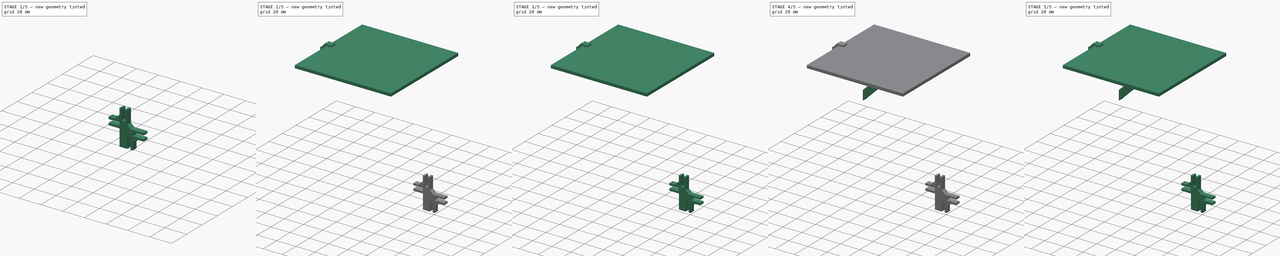
[diagram: build sequence overview — one tinted view per stage of 5, left to right]
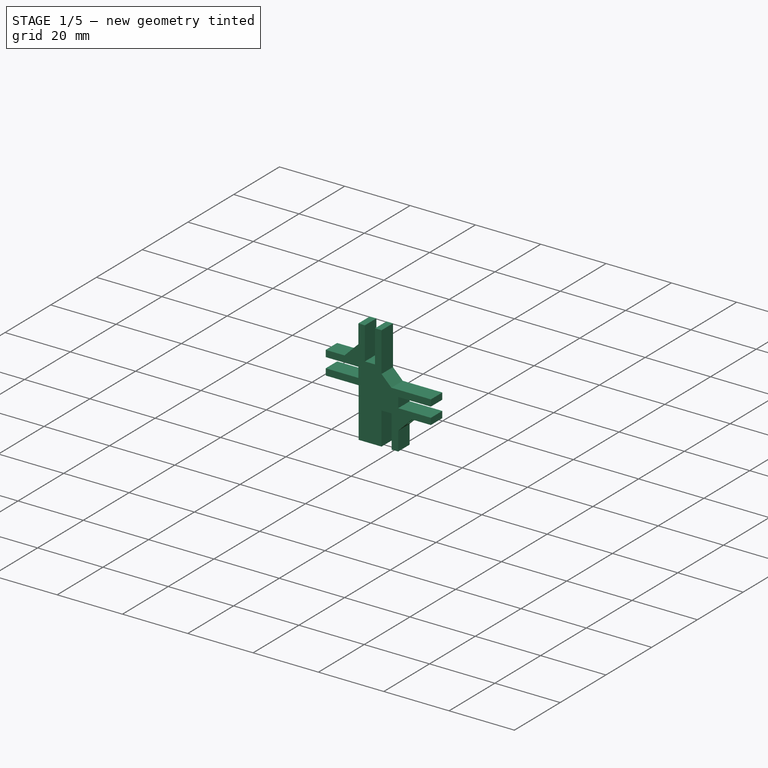
[diagram: stage 1 of 5 — iso view after this stage's code; geometry added in this stage tinted green]
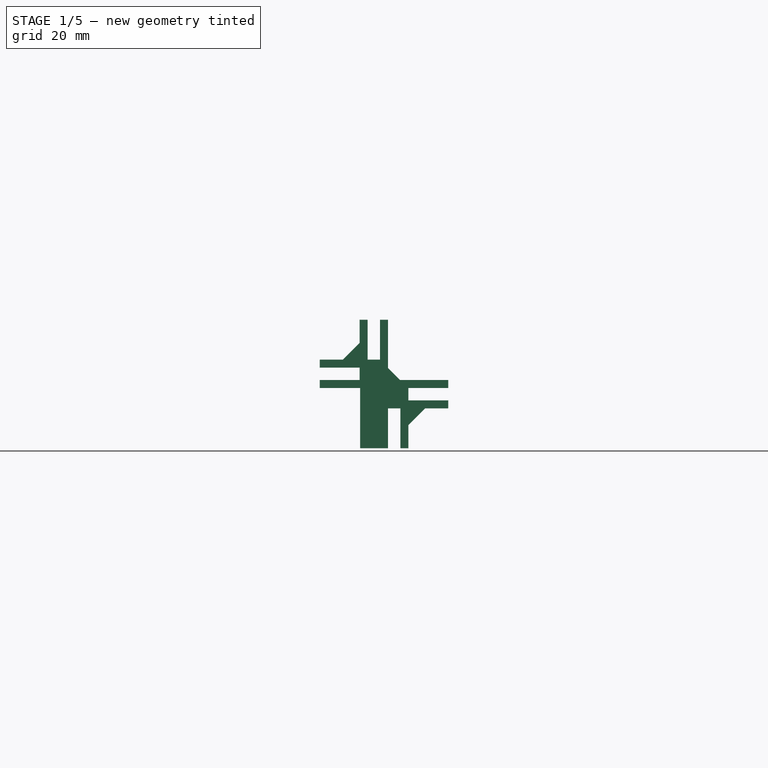
[diagram: stage 1 of 5 — front view after this stage's code; geometry added in this stage tinted green]
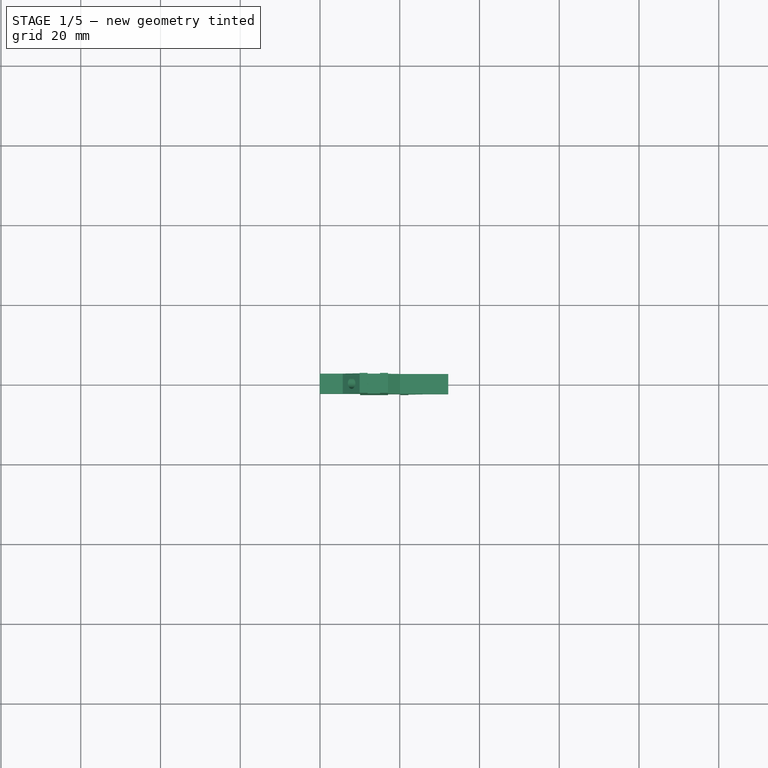
[diagram: stage 1 of 5 — top view after this stage's code; geometry added in this stage tinted green]
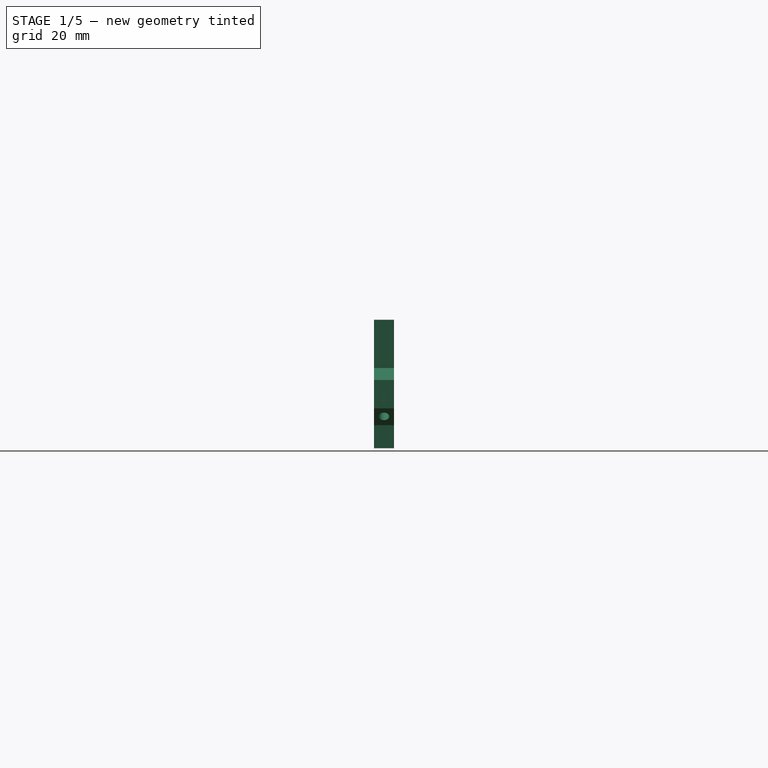
[diagram: stage 1 of 5 — right view after this stage's code; geometry added in this stage tinted green]
FCSTD DOCUMENT  (FreeCAD 0.19R24291 (Git))
Label: LEDcube
License: All rights reserved
LicenseURL: http://en.wikipedia.org/wiki/All_rights_reserved
objects: PartDesign::Body×11, Sketcher::SketchObject×10, PartDesign::FeatureBase×7, PartDesign::Hole×6, PartDesign::Pad×4, Part::Feature×1
note: 49 computed .brp shape members not serialized (recipe doc carries the construction recipe); baked Part::Feature solids carry a one-line shape summary decoded from their .brp

FEATURE [PartDesign::Body] Body009  label="Plexi1"
  BaseFeature = -> Body004
  Group = -> [Clone006]
  Origin = -> Origin009
  Placement = pos=(0,0,0) rot=(0,1,0;1.5708rad)
  Tip = -> Clone006
FEATURE [Sketcher::SketchObject] Sketch008
  AttachmentOffset = pos=(0,0,-2.5) rot=(0,0,1;0rad)
  FullyConstrained = true
  MapMode = 5
  Placement = pos=(0,2.5,6e-16) rot=(1,0,0;1.5708rad)
  Support = -> [XZ_Plane010]
  sketch-geometry (43):
    g0: LineSegment StartX=49.95 StartY=-40.139 StartZ=0 EndX=51.95 EndY=-40.139 EndZ=0
    g1: LineSegment StartX=51.95 StartY=-40.139 StartZ=0 EndX=51.95 EndY=-50.139 EndZ=0
    g2: LineSegment StartX=51.95 StartY=-50.139 StartZ=0 EndX=55.05 EndY=-50.139 EndZ=0
    g3: LineSegment StartX=55.05 StartY=-50.139 StartZ=0 EndX=55.05 EndY=-40.139 EndZ=0
    g4: LineSegment StartX=55.05 StartY=-40.139 StartZ=0 EndX=57.05 EndY=-40.139 EndZ=0
    g5: LineSegment StartX=72.15 StartY=-55.239 StartZ=0 EndX=72.15 EndY=-57.239 EndZ=0
    g6: LineSegment StartX=72.15 StartY=-57.239 StartZ=0 EndX=62.15 EndY=-57.239 EndZ=0
    g7: LineSegment StartX=62.15 StartY=-57.239 StartZ=0 EndX=62.15 EndY=-60.339 EndZ=0
    g8: LineSegment StartX=62.15 StartY=-60.339 StartZ=0 EndX=72.15 EndY=-60.339 EndZ=0
    g9: LineSegment StartX=72.15 StartY=-60.339 StartZ=0 EndX=72.15 EndY=-62.339 EndZ=0
    g10: LineSegment StartX=72.15 StartY=-62.339 StartZ=0 EndX=66.3926 EndY=-62.339 EndZ=0
    g11: LineSegment StartX=66.3926 StartY=-62.339 StartZ=0 EndX=62.15 EndY=-66.5817 EndZ=0
    g12: LineSegment StartX=62.15 StartY=-66.5817 StartZ=0 EndX=62.15 EndY=-72.339 EndZ=0
    g13: LineSegment StartX=62.15 StartY=-72.339 StartZ=0 EndX=60.15 EndY=-72.339 EndZ=0
    g14: LineSegment StartX=60.15 StartY=-72.339 StartZ=0 EndX=60.15 EndY=-62.339 EndZ=0
    g15: LineSegment StartX=60.15 StartY=-62.339 StartZ=0 EndX=57.05 EndY=-62.339 EndZ=0
    g16: LineSegment StartX=57.05 StartY=-62.339 StartZ=0 EndX=57.05 EndY=-72.339 EndZ=0
    g17: LineSegment StartX=57.05 StartY=-72.339 StartZ=0 EndX=50.05 EndY=-72.339 EndZ=0
    g18: LineSegment StartX=50.05 StartY=-72.339 StartZ=0 EndX=50.05 EndY=-57.239 EndZ=0
    g19: LineSegment StartX=50.05 StartY=-57.239 StartZ=0 EndX=39.95 EndY=-57.239 EndZ=0
    g20: LineSegment StartX=39.95 StartY=-57.239 StartZ=0 EndX=39.95 EndY=-55.239 EndZ=0
    g21: LineSegment StartX=39.95 StartY=-55.239 StartZ=0 EndX=49.95 EndY=-55.239 EndZ=0
    g22: LineSegment StartX=49.95 StartY=-55.239 StartZ=0 EndX=49.95 EndY=-52.139 EndZ=0
    g23: LineSegment StartX=49.95 StartY=-52.139 StartZ=0 EndX=39.95 EndY=-52.139 EndZ=0
    g24: LineSegment StartX=39.95 StartY=-52.139 StartZ=0 EndX=39.95 EndY=-50.139 EndZ=0
    g25: LineSegment StartX=39.95 StartY=-50.139 StartZ=0 EndX=45.7074 EndY=-50.139 EndZ=0
    g26: LineSegment StartX=45.7074 StartY=-50.139 StartZ=0 EndX=49.95 EndY=-45.8964 EndZ=0
    g27: LineSegment StartX=49.95 StartY=-45.8964 StartZ=0 EndX=49.95 EndY=-40.139 EndZ=0
    g28: LineSegment StartX=51.95 StartY=-40.139 StartZ=0 EndX=55.05 EndY=-40.139 EndZ=0
    g29: LineSegment StartX=57.05 StartY=-72.339 StartZ=0 EndX=60.15 EndY=-72.339 EndZ=0
    g30: LineSegment StartX=39.95 StartY=-52.139 StartZ=0 EndX=39.95 EndY=-55.239 EndZ=0
    g31: LineSegment StartX=72.15 StartY=-57.239 StartZ=0 EndX=72.15 EndY=-60.339 EndZ=0
    g32: LineSegment StartX=45.7074 StartY=-50.139 StartZ=0 EndX=49.95 EndY=-50.139 EndZ=0
    g33: LineSegment StartX=49.95 StartY=-50.139 StartZ=0 EndX=49.95 EndY=-45.8964 EndZ=0
    g34: LineSegment StartX=66.3926 StartY=-62.339 StartZ=0 EndX=62.15 EndY=-62.339 EndZ=0
    g35: LineSegment StartX=62.15 StartY=-62.339 StartZ=0 EndX=62.15 EndY=-66.5817 EndZ=0
    g36: LineSegment StartX=57.05 StartY=-55.239 StartZ=0 EndX=57.05 EndY=-62.339 EndZ=0
    g37: LineSegment StartX=50.05 StartY=-57.239 StartZ=0 EndX=62.15 EndY=-57.239 EndZ=0
    g38: LineSegment StartX=72.15 StartY=-55.239 StartZ=0 EndX=60.05 EndY=-55.239 EndZ=0
    g39: LineSegment StartX=60.05 StartY=-55.239 StartZ=0 EndX=57.05 EndY=-52.239 EndZ=0
    g40: LineSegment StartX=57.05 StartY=-52.239 StartZ=0 EndX=57.05 EndY=-40.139 EndZ=0
    g41: LineSegment StartX=57.05 StartY=-52.239 StartZ=0 EndX=57.05 EndY=-55.239 EndZ=0
    g42: LineSegment StartX=57.05 StartY=-55.239 StartZ=0 EndX=60.05 EndY=-55.239 EndZ=0
  constraints (120):
    c: Horizontal(g0)
    c: Coincident(g0,g1)
    c: Vertical(g1)
    c: Coincident(g1,g2)
    c: Horizontal(g2)
    c: Coincident(g2,g3)
    c: Vertical(g3)
    c: Coincident(g3,g4)
    c: Horizontal(g4)
    c: Vertical(g5)
    c: Coincident(g5,g6)
    c: Horizontal(g6)
    c: Coincident(g6,g7)
    c: Vertical(g7)
    c: Coincident(g7,g8)
    c: Horizontal(g8)
    c: Coincident(g8,g9)
    c: Vertical(g9)
    c: Coincident(g9,g10)
    c: Horizontal(g10)
    c: Coincident(g10,g11)
    c: Coincident(g11,g12)
    c: Vertical(g12)
    c: Coincident(g12,g13)
    c: Horizontal(g13)
    c: Coincident(g13,g14)
    c: Vertical(g14)
    c: Coincident(g14,g15)
    c: Horizontal(g15)
    c: Coincident(g15,g16)
    c: Vertical(g16)
    c: Coincident(g16,g17)
    c: Horizontal(g17)
    c: Coincident(g17,g18)
    c: Vertical(g18)
    c: Coincident(g18,g19)
    c: Horizontal(g19)
    c: Coincident(g19,g20)
    c: Vertical(g20)
    c: Coincident(g20,g21)
    c: Horizontal(g21)
    c: Coincident(g21,g22)
    c: Vertical(g22)
    c: Coincident(g22,g23)
    c: Horizontal(g23)
    c: Coincident(g23,g24)
    c: Vertical(g24)
    c: Coincident(g24,g25)
    c: Horizontal(g25)
    c: Coincident(g25,g26)
    c: Coincident(g26,g27)
    c: Coincident(g27,g0)
    c: Vertical(g27)
    c: Equal(g2,g22)
    c: Equal(g22,g15)
    c: Equal(g15,g7)
    c: DistanceX(g2,g2) = 3.1
    c: DistanceX(g1) = 51.95
    c: DistanceY(g1) = -50.139
    c: Equal(g0,g4)
    c: Equal(g4,g24)
    c: Equal(g24,g20)
    c: Equal(g20,g5)
    c: Equal(g5,g9)
    c: Equal(g26,g11)
    c: Distance(g26) = 6
    c: Equal(g27,g25)
    c: Equal(g25,g10)
    c: Equal(g10,g12)
    c: Coincident(g28,g0)
    c: Coincident(g28,g3)
    c: Horizontal(g28)
    c: Coincident(g29,g16)
    c: Coincident(g29,g13)
    c: Horizontal(g29)
    c: Coincident(g30,g23)
    c: Coincident(g30,g20)
    c: Vertical(g30)
    c: Coincident(g31,g5)
    c: Coincident(g31,g8)
    c: Vertical(g31)
    c: Equal(g23,g16)
    c: Equal(g16,g8)
    c: Equal(g8,g3)
    c: Coincident(g32,g25)
    c: Horizontal(g32)
    c: Coincident(g33,g32)
    c: Coincident(g33,g26)
    c: Vertical(g33)
    c: Equal(g32,g33)
    c: Coincident(g34,g10)
    c: Horizontal(g34)
    c: Coincident(g35,g34)
    c: Coincident(g35,g11)
    c: Vertical(g35)
    c: Equal(g35,g34)
    c: DistanceY(g2,g4) = 10
    c: DistanceY(g22,g1) = 2
    c: DistanceY(g9,g9) = 2
    c: Equal(g13,g9)
    c: Coincident(g36,g15)
    c: Vertical(g36)
    c: DistanceX(g17,g17) = 7
    c: Coincident(g37,g18)
    c: Coincident(g37,g6)
    c: Horizontal(g37)
    c: Coincident(g38,g5)
    c: Horizontal(g38)
    c: Coincident(g39,g38)
    c: Coincident(g40,g39)
    c: Vertical(g40)
    c: Coincident(g41,g39)
    c: Vertical(g41)
    c: Coincident(g42,g41)
    c: Coincident(g42,g38)
    c: Horizontal(g42)
    c: Equal(g41,g42)
    c: Coincident(g36,g41)
    c: Coincident(g40,g4)
    c: DistanceY(g41,g41) = 3
FEATURE [PartDesign::Pad] Pad004
  Direction = (1,1,1)
  Length = 5
  Length2 = 100
  Placement = pos=(0,0,0) rot=(1,0,0;1.5708rad)
  Profile = -> Sketch008
  Type = 0
FEATURE [Sketcher::SketchObject] Sketch009
  FullyConstrained = true
  MapMode = 5
  Placement = pos=(64.3658,1.43e-14,-64.3658) rot=(0.92388,0,0.382683;3.14159rad)
  Support = -> [Pad004]
  sketch-geometry (1):
    g0: Circle CenterX=0 CenterY=0 CenterZ=0 NormalX=0 NormalY=0 NormalZ=1 AngleXU=0 Radius=1.5
  constraints (2):
    c: Coincident(g0,g-1)
    c: Diameter(g0) = 3
FEATURE [PartDesign::Hole] Hole004
  BaseFeature = -> Pad004
  Depth = 25
  DepthType = 1
  Diameter = 2.65
  DrillForDepth = false
  DrillPoint = 1
  DrillPointAngle = 118
  HoleCutCountersinkAngle = 90
  HoleCutCustomValues = false
  HoleCutDepth = 0
  HoleCutDiameter = 6.1
  HoleCutType = 0
  ModelActualThread = false
  Placement = pos=(0,0,0) rot=(1,0,0;1.5708rad)
  Profile = -> Sketch009
  Tapered = false
  TaperedAngle = 90
  ThreadAngle = 60
  ThreadClass = 0
  ThreadCutOffInner = 0.0378886
  ThreadCutOffOuter = 0.0757772
  ThreadDirection = 0
  ThreadFit = 0
  ThreadPitch = 0.35
  ThreadSize = 9
  ThreadType = 2
  Threaded = true
FEATURE [Sketcher::SketchObject] Sketch010
  FullyConstrained = true
  MapMode = 5
  Placement = pos=(0,1.61e-14,-72.339) rot=(1,0,0;3.14159rad)
  Support = -> [Hole004]
  sketch-geometry (1):
    g0: Circle CenterX=53.5 CenterY=0 CenterZ=0 NormalX=0 NormalY=0 NormalZ=1 AngleXU=0 Radius=1.5
  constraints (3):
    c: PointOnObject(g0,g-1)
    c: DistanceX(g-1,g0) = 53.5
    c: Diameter(g0) = 3
FEATURE [PartDesign::Hole] Hole005
  BaseFeature = -> Hole004
  Depth = 12
  DepthType = 0
  Diameter = 2.65
  DrillForDepth = false
  DrillPoint = 1
  DrillPointAngle = 118
  HoleCutCountersinkAngle = 90
  HoleCutCustomValues = false
  HoleCutDepth = 0
  HoleCutDiameter = 6.1
  HoleCutType = 0
  ModelActualThread = false
  Placement = pos=(0,0,0) rot=(1,0,0;1.5708rad)
  Profile = -> Sketch010
  Tapered = false
  TaperedAngle = 90
  ThreadAngle = 60
  ThreadClass = 0
  ThreadCutOffInner = 0.0378886
  ThreadCutOffOuter = 0.0757772
  ThreadDirection = 0
  ThreadFit = 0
  ThreadPitch = 0.35
  ThreadSize = 9
  ThreadType = 2
  Threaded = true
FEATURE [PartDesign::Body] Body010  label="fuss"
  Group = -> [Sketch008,Pad004,Sketch009,Hole004,Sketch010,Hole005]
  Origin = -> Origin010
  Tip = -> Hole005
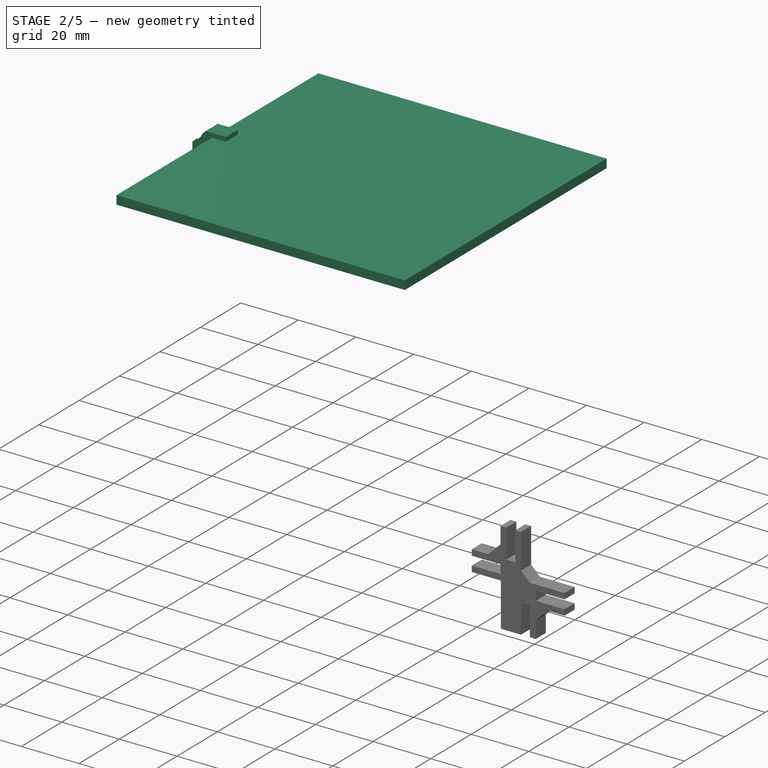
[diagram: stage 2 of 5 — iso view after this stage's code; geometry added in this stage tinted green]
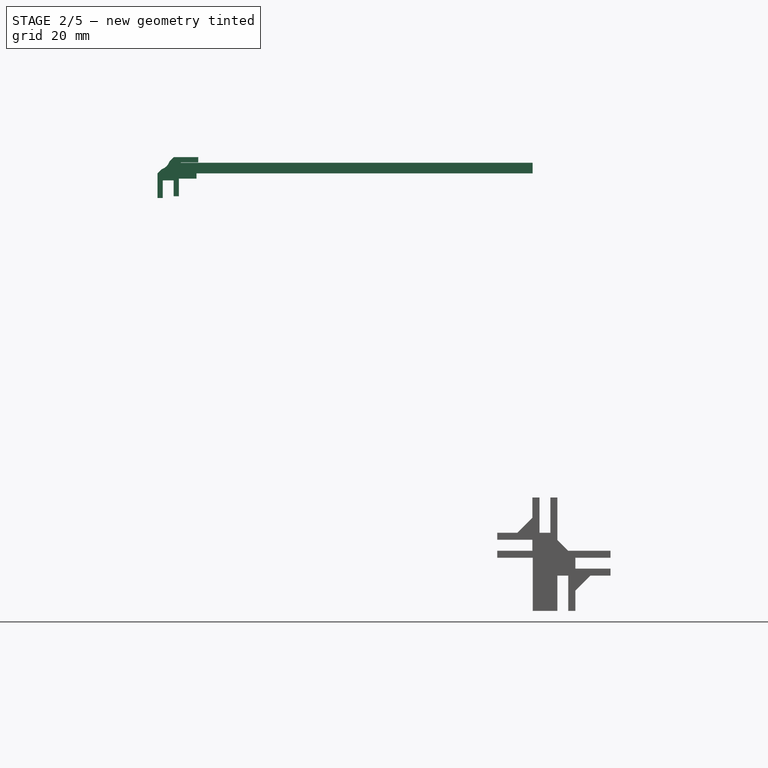
[diagram: stage 2 of 5 — front view after this stage's code; geometry added in this stage tinted green]
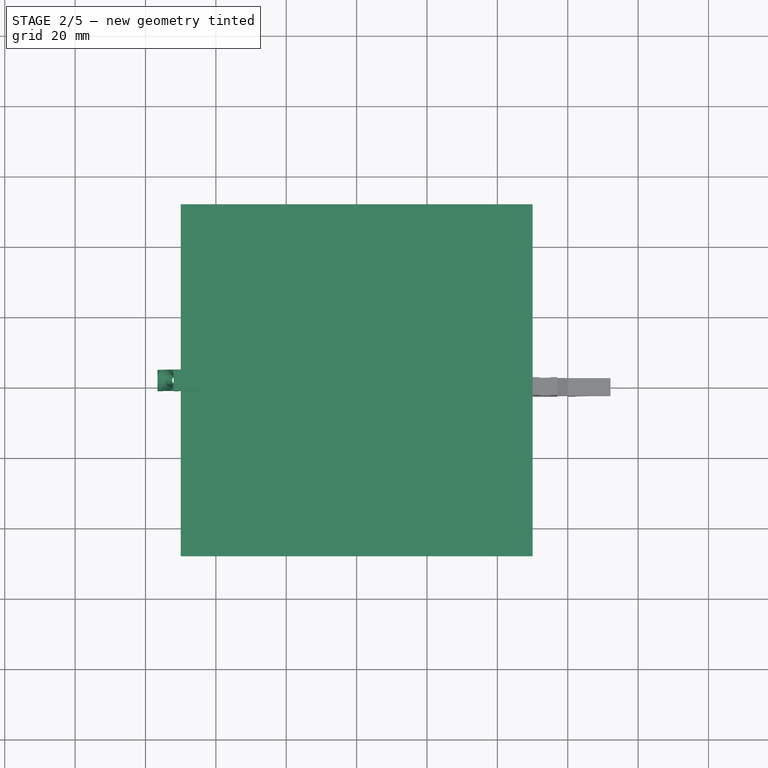
[diagram: stage 2 of 5 — top view after this stage's code; geometry added in this stage tinted green]
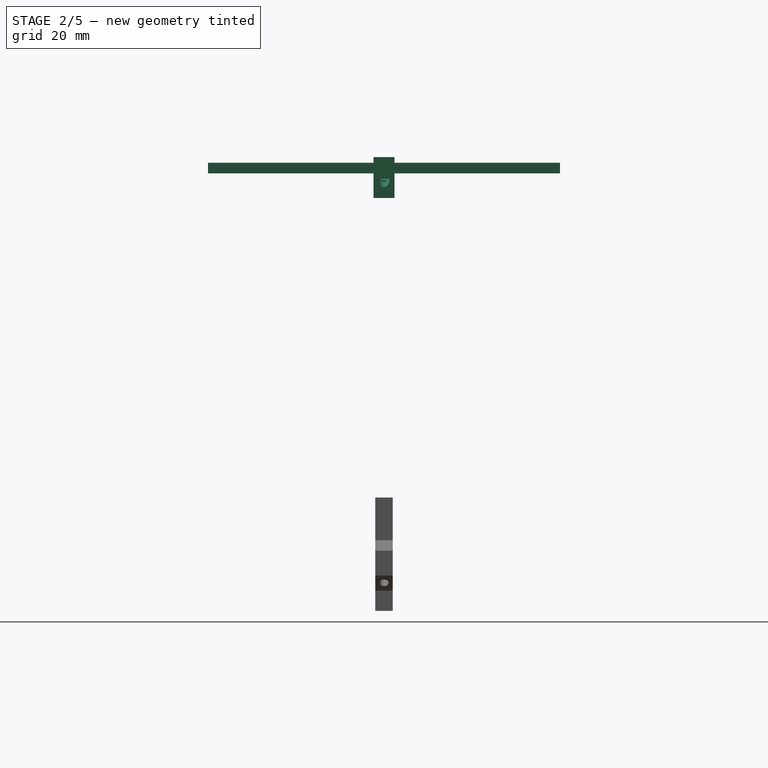
[diagram: stage 2 of 5 — right view after this stage's code; geometry added in this stage tinted green]
FEATURE [PartDesign::Body] Body003
  BaseFeature = -> Body
  Group = -> [Clone002]
  Origin = -> Origin003
  Placement = pos=(0,0,0) rot=(0,0,-1;1.5708rad)
  Tip = -> Clone002
FEATURE [Sketcher::SketchObject] Sketch005
  FullyConstrained = true
  MapMode = 5
  Support = -> [XY_Plane004]
  sketch-geometry (4):
    g0: LineSegment StartX=-50 StartY=50 StartZ=0 EndX=50 EndY=50 EndZ=0
    g1: LineSegment StartX=50 StartY=50 StartZ=0 EndX=50 EndY=-50 EndZ=0
    g2: LineSegment StartX=50 StartY=-50 StartZ=0 EndX=-50 EndY=-50 EndZ=0
    g3: LineSegment StartX=-50 StartY=-50 StartZ=0 EndX=-50 EndY=50 EndZ=0
  constraints (10):
    c: Coincident(g0,g1)
    c: Coincident(g1,g2)
    c: Coincident(g2,g3)
    c: Coincident(g3,g0)
    c: Horizontal(g2)
    c: Vertical(g1)
    c: Symmetric(g0,g2,g-1)
    c: Symmetric(g0,g0,g-2)
    c: Equal(g3,g0)
    c: DistanceY(g1,g1) = 100
FEATURE [PartDesign::Pad] Pad002
  Direction = (1,1,1)
  Length = 3
  Length2 = 100
  Profile = -> Sketch005
  Type = 0
FEATURE [PartDesign::Body] Body004  label="Plexi"
  Group = -> [Sketch005,Pad002]
  Origin = -> Origin004
  Placement = pos=(0,0,52) rot=(0,0,1;0rad)
  Tip = -> Pad002
FEATURE [Sketcher::SketchObject] Sketch006
  AttachmentOffset = pos=(0,0,-3) rot=(0,0,1;0rad)
  FullyConstrained = true
  MapMode = 5
  Placement = pos=(0,3,7e-16) rot=(1,0,0;1.5708rad)
  Support = -> [XZ_Plane005]
  sketch-geometry (20):
    g0: LineSegment StartX=-50 StartY=52 StartZ=0 EndX=-50 EndY=55.1 EndZ=0
    g1: LineSegment StartX=-50 StartY=55.1 StartZ=0 EndX=-45 EndY=55.1 EndZ=0
    g2: LineSegment StartX=-45 StartY=55.1 StartZ=0 EndX=-45 EndY=56.6 EndZ=0
    g3: LineSegment StartX=-45 StartY=56.6 StartZ=0 EndX=-52.0038 EndY=56.6 EndZ=0
    g4: LineSegment StartX=-52.0038 StartY=56.6 StartZ=0 EndX=-56.6 EndY=52.0038 EndZ=0
    g5: LineSegment StartX=-56.6 StartY=52.0038 StartZ=0 EndX=-56.6 EndY=45 EndZ=0
    g6: LineSegment StartX=-56.6 StartY=45 StartZ=0 EndX=-55.1 EndY=45 EndZ=0
    g7: LineSegment StartX=-55.1 StartY=45 StartZ=0 EndX=-55.1 EndY=50 EndZ=0
    g8: LineSegment StartX=-55.1 StartY=50 StartZ=0 EndX=-52 EndY=50 EndZ=0
    g9: LineSegment StartX=-52 StartY=50 StartZ=0 EndX=-50 EndY=52 EndZ=0
    g10: LineSegment StartX=-52 StartY=50 StartZ=0 EndX=-50 EndY=50 EndZ=0
    g11: LineSegment StartX=-50 StartY=52 StartZ=0 EndX=-50 EndY=50 EndZ=0
    g12: LineSegment StartX=-52.0038 StartY=56.6 StartZ=0 EndX=-56.6 EndY=56.6 EndZ=0
    g13: LineSegment StartX=-56.6 StartY=56.6 StartZ=0 EndX=-56.6 EndY=52.0038 EndZ=0
    g14: LineSegment StartX=-50 StartY=52 StartZ=0 EndX=-45.5 EndY=52 EndZ=0
    g15: LineSegment StartX=-45.5 StartY=52 StartZ=0 EndX=-45.5 EndY=50.5 EndZ=0
    g16: LineSegment StartX=-45.5 StartY=50.5 StartZ=0 EndX=-50.5 EndY=50.5 EndZ=0
    g17: LineSegment StartX=-50.5 StartY=50.5 StartZ=0 EndX=-50.5 EndY=45.5 EndZ=0
    g18: LineSegment StartX=-50.5 StartY=45.5 StartZ=0 EndX=-52 EndY=45.5 EndZ=0
    g19: LineSegment StartX=-52 StartY=45.5 StartZ=0 EndX=-52 EndY=50 EndZ=0
  constraints (57):
    c: Vertical(g0)
    c: Coincident(g0,g1)
    c: Horizontal(g1)
    c: Coincident(g1,g2)
    c: Vertical(g2)
    c: Coincident(g2,g3)
    c: Horizontal(g3)
    c: Coincident(g3,g4)
    c: Coincident(g4,g5)
    c: Vertical(g5)
    c: Coincident(g5,g6)
    c: Coincident(g6,g7)
    c: Vertical(g7)
    c: Coincident(g7,g8)
    c: Horizontal(g8)
    c: Coincident(g8,g9)
    c: Coincident(g9,g0)
    c: Horizontal(g6)
    c: Equal(g8,g0)
    c: Coincident(g10,g8)
    c: Horizontal(g10)
    c: Coincident(g11,g0)
    c: Coincident(g11,g10)
    c: Vertical(g11)
    c: Equal(g10,g11)
    c: Equal(g7,g1)
    c: Coincident(g12,g3)
    c: Horizontal(g12)
    c: Coincident(g13,g12)
    c: Coincident(g13,g4)
    c: Vertical(g13)
    c: Equal(g13,g12)
    c: Equal(g6,g2)
    c: DistanceY(g7,g7) = 5
    c: DistanceX(g6,g6) = 1.5
    c: DistanceY(g0,g0) = 3.1
    c: Distance(g4) = 6.5
    c: DistanceX(g10) = -50
    c: DistanceY(g10) = 50
    c: DistanceY(g11,g11) = 2
    c: Coincident(g14,g0)
    c: Horizontal(g14)
    c: Coincident(g15,g14)
    c: Vertical(g15)
    c: Coincident(g16,g15)
    c: Horizontal(g16)
    c: Vertical(g17)
    c: Coincident(g18,g17)
    c: Horizontal(g18)
    c: Coincident(g19,g18)
    c: Coincident(g19,g8)
    c: Vertical(g19)
    c: Equal(g15,g2)
    c: Coincident(g17,g16)
    c: Equal(g1,g16)
    c: Equal(g17,g16)
    c: Equal(g18,g15)
FEATURE [PartDesign::Pad] Pad003
  Direction = (1,1,1)
  Length = 6
  Length2 = 100
  Placement = pos=(0,0,0) rot=(1,0,0;1.5708rad)
  Profile = -> Sketch006
  Type = 0
FEATURE [Sketcher::SketchObject] Sketch007
  FullyConstrained = true
  MapMode = 5
  Placement = pos=(-54.3019,-1.21e-14,54.3019) rot=(-0.382683,0,0.92388;3.14159rad)
  Support = -> [Pad003]
  sketch-geometry (1):
    g0: Circle CenterX=0 CenterY=0 CenterZ=0 NormalX=0 NormalY=0 NormalZ=1 AngleXU=0 Radius=1.5
  constraints (2):
    c: Coincident(g0,g-1)
    c: Diameter(g0) = 3
FEATURE [PartDesign::Hole] Hole003
  BaseFeature = -> Pad003
  Depth = 25
  DepthType = 1
  Diameter = 3.4
  DrillForDepth = false
  DrillPoint = 1
  DrillPointAngle = 118
  HoleCutCountersinkAngle = 90
  HoleCutCustomValues = false
  HoleCutDepth = 0
  HoleCutDiameter = 6.8
  HoleCutType = 2
  ModelActualThread = false
  Placement = pos=(0,0,0) rot=(1,0,0;1.5708rad)
  Profile = -> Sketch007
  Tapered = false
  TaperedAngle = 90
  ThreadAngle = 0
  ThreadClass = 0
  ThreadCutOffInner = 0
  ThreadCutOffOuter = 0
  ThreadDirection = 0
  ThreadFit = 0
  ThreadPitch = 0
  ThreadSize = 9
  ThreadType = 2
  Threaded = false
FEATURE [PartDesign::Body] Body008  label="Halter3"
  BaseFeature = -> Body005
  Group = -> [Clone005]
  Origin = -> Origin008
  Placement = pos=(0,0,0) rot=(0,0,-1;1.5708rad)
  Tip = -> Clone005
FEATURE [PartDesign::FeatureBase] Clone006
  BaseFeature = -> Body004
  Placement = pos=(0,0,52) rot=(0,0,1;0rad)
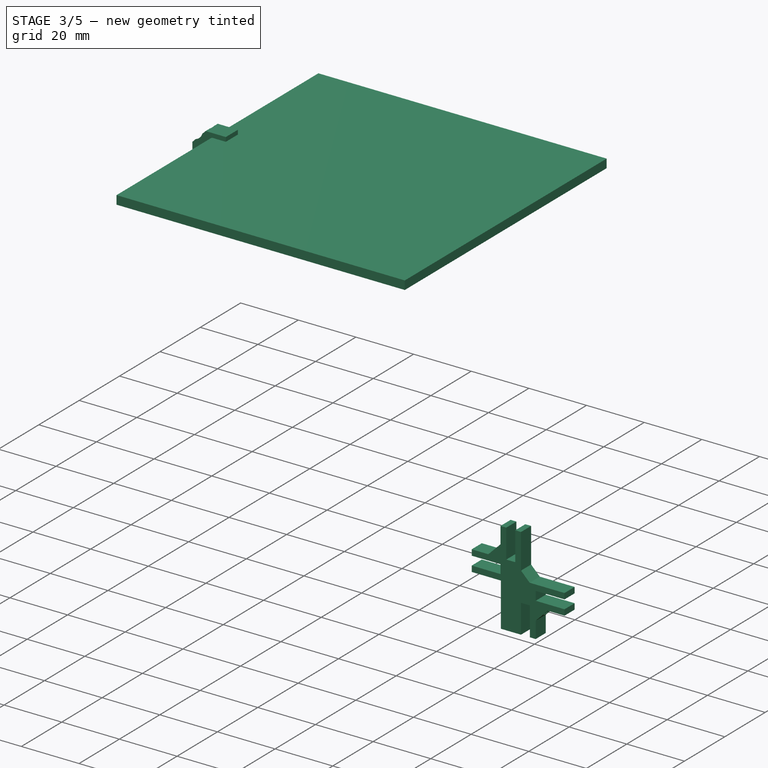
[diagram: stage 3 of 5 — iso view after this stage's code; geometry added in this stage tinted green]
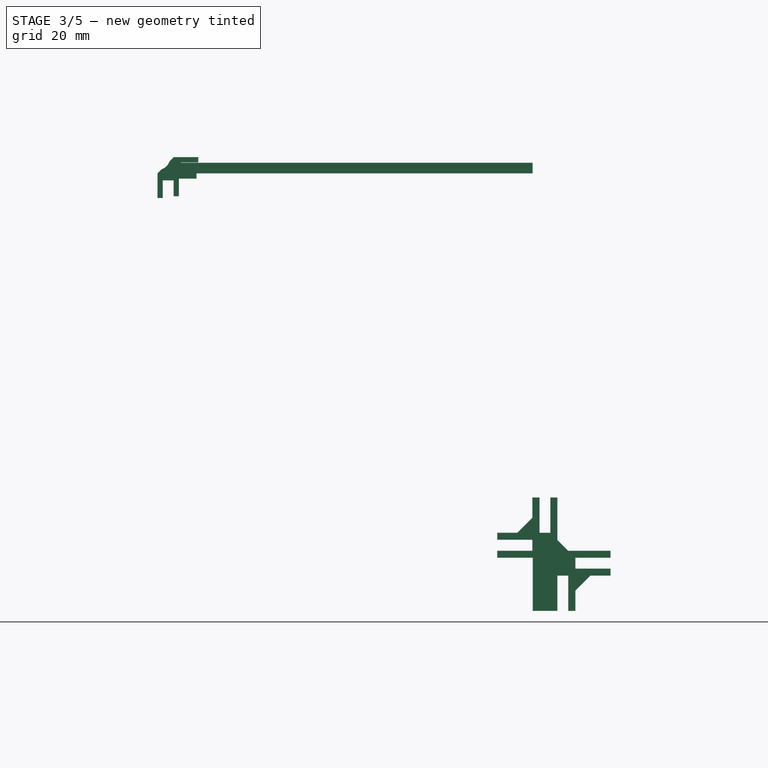
[diagram: stage 3 of 5 — front view after this stage's code; geometry added in this stage tinted green]
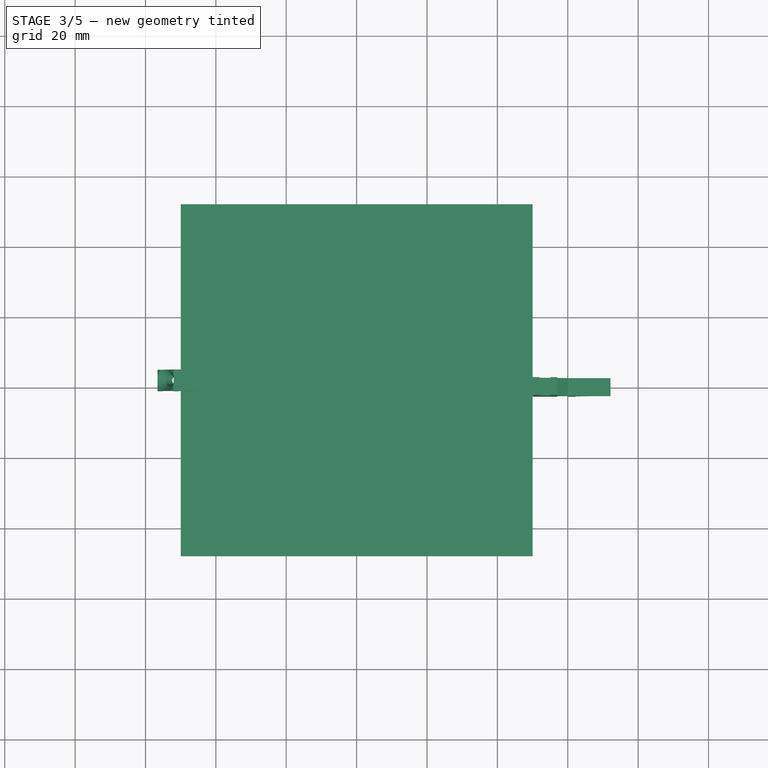
[diagram: stage 3 of 5 — top view after this stage's code; geometry added in this stage tinted green]
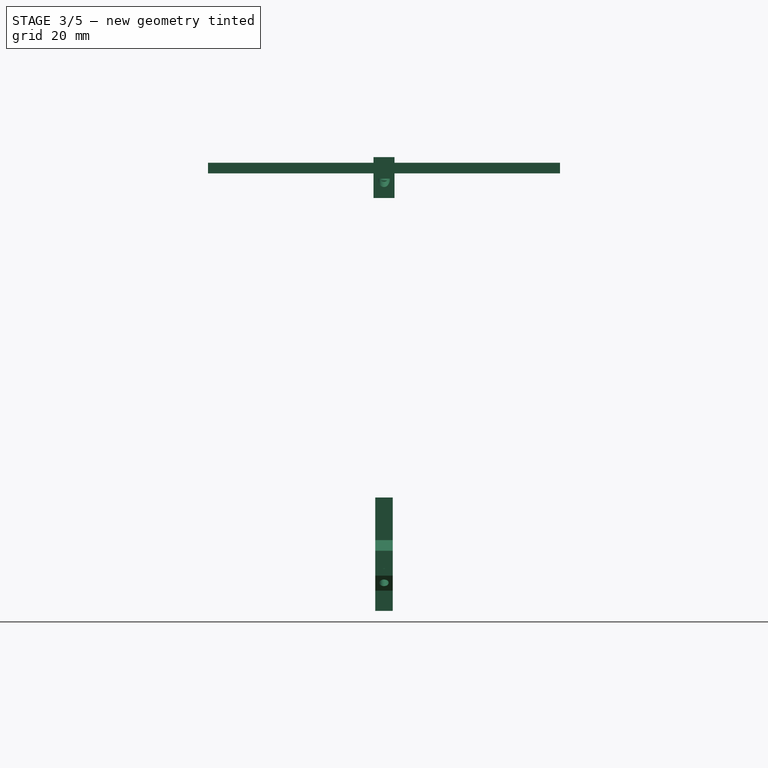
[diagram: stage 3 of 5 — right view after this stage's code; geometry added in this stage tinted green]
FEATURE [PartDesign::Body] Body005  label="Halter"
  Group = -> [Sketch006,Pad003,Sketch007,Hole003]
  Origin = -> Origin005
  Tip = -> Hole003
FEATURE [PartDesign::FeatureBase] Clone003
  BaseFeature = -> Body005
FEATURE [PartDesign::Body] Body006  label="Halter1"
  BaseFeature = -> Body005
  Group = -> [Clone003]
  Origin = -> Origin006
  Placement = pos=(0,0,0) rot=(0,0,1;1.5708rad)
  Tip = -> Clone003
FEATURE [PartDesign::FeatureBase] Clone004
  BaseFeature = -> Body005
FEATURE [PartDesign::Body] Body007  label="Halter2"
  BaseFeature = -> Body005
  Group = -> [Clone004]
  Origin = -> Origin007
  Placement = pos=(0,0,0) rot=(0,0,1;3.14159rad)
  Tip = -> Clone004
FEATURE [PartDesign::FeatureBase] Clone005
  BaseFeature = -> Body005
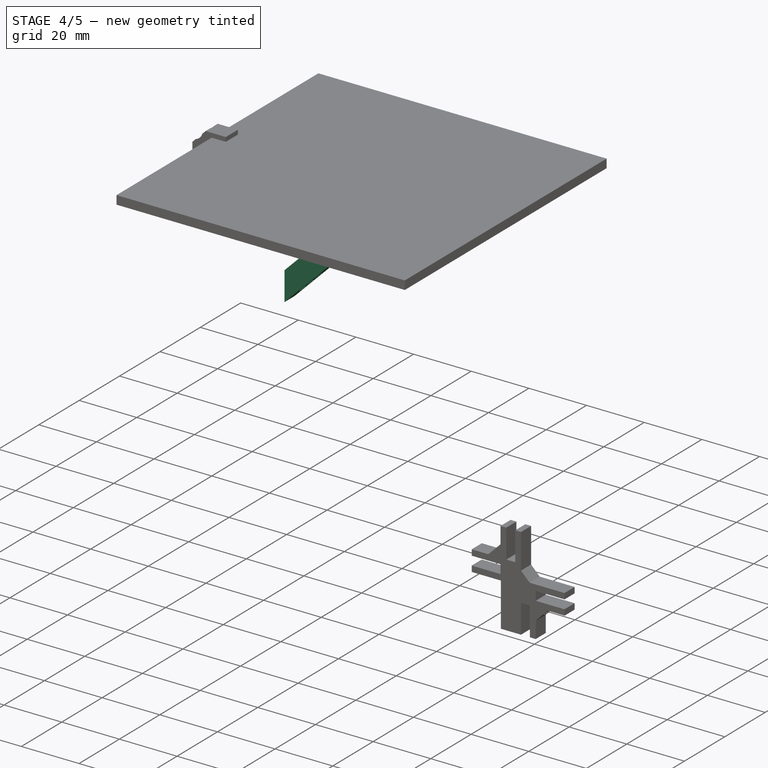
[diagram: stage 4 of 5 — iso view after this stage's code; geometry added in this stage tinted green]
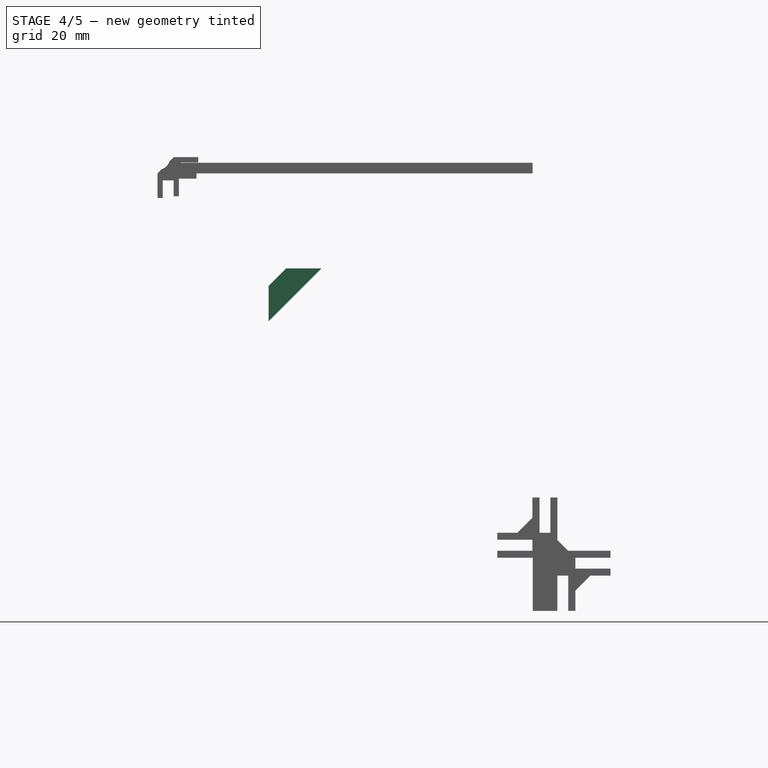
[diagram: stage 4 of 5 — front view after this stage's code; geometry added in this stage tinted green]
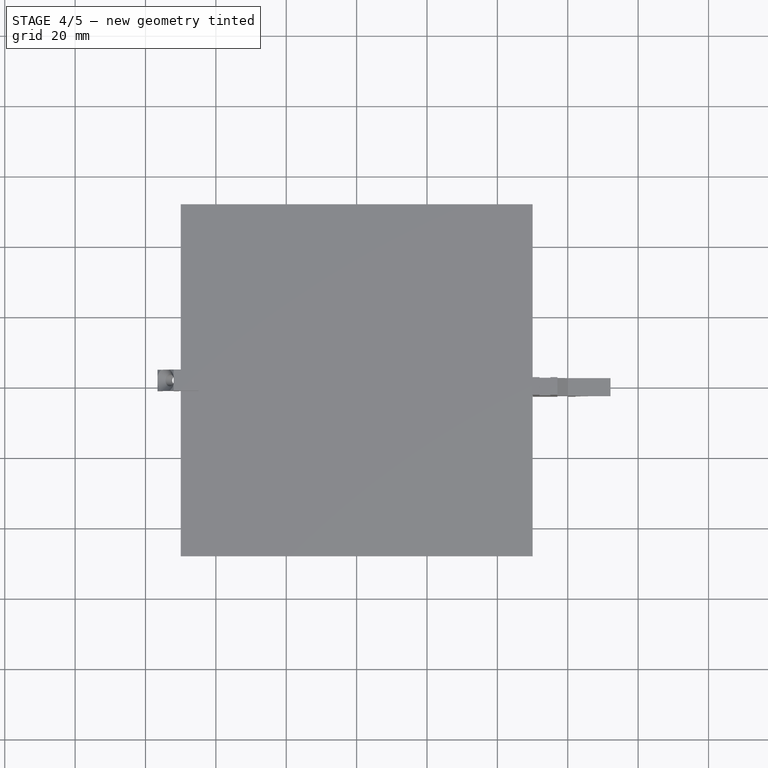
[diagram: stage 4 of 5 — top view after this stage's code; geometry added in this stage tinted green]
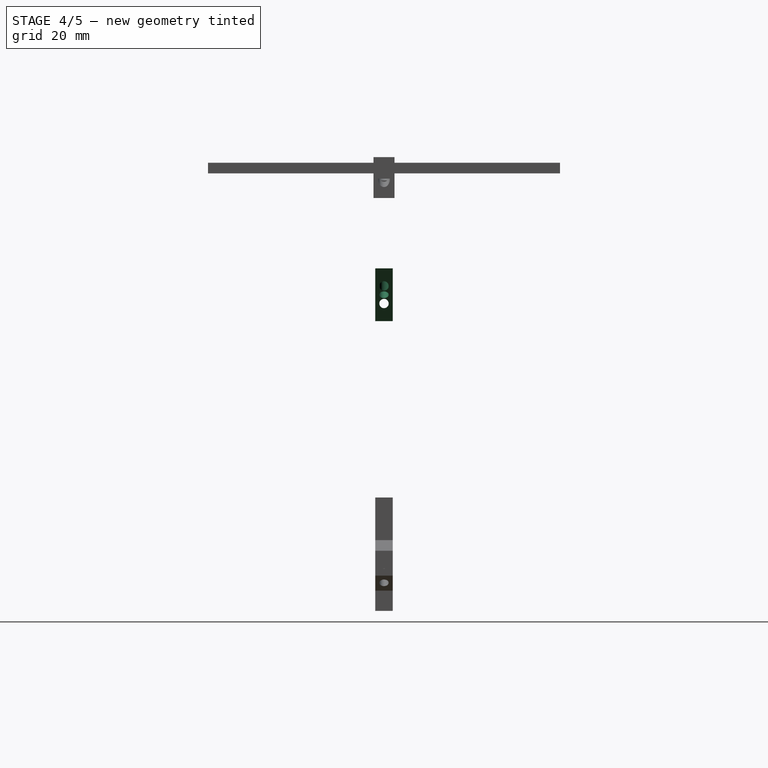
[diagram: stage 4 of 5 — right view after this stage's code; geometry added in this stage tinted green]
FEATURE [Part::Feature] Feature  label="LEDcube"
  Placement = pos=(0,0,25) rot=(0,0,1;0rad)
  shape: bbox 40 x 40 x 12.04 mm, 1418 faces, 20 solids (baked)
FEATURE [Sketcher::SketchObject] Sketch
  AttachmentOffset = pos=(0,0,-2.5) rot=(0,0,1;0rad)
  FullyConstrained = true
  MapMode = 5
  Placement = pos=(0,2.5,6e-16) rot=(1,0,0;1.5708rad)
  Support = -> [XZ_Plane]
  sketch-geometry (8):
    g0: LineSegment StartX=-10 StartY=25 StartZ=0 EndX=-20 EndY=25 EndZ=0
    g1: LineSegment StartX=-20 StartY=25 StartZ=0 EndX=-25 EndY=20 EndZ=0
    g2: LineSegment StartX=-25 StartY=20 StartZ=0 EndX=-25 EndY=10 EndZ=0
    g3: LineSegment StartX=-25 StartY=10 StartZ=0 EndX=-10 EndY=25 EndZ=0
    g4: LineSegment StartX=-25 StartY=25 StartZ=0 EndX=-20 EndY=25 EndZ=0
    g5: LineSegment StartX=-25 StartY=25 StartZ=0 EndX=-25 EndY=20 EndZ=0
    g6: LineSegment StartX=-25 StartY=10 StartZ=0 EndX=-25 EndY=0 EndZ=0
    g7: LineSegment StartX=-10 StartY=25 StartZ=0 EndX=0 EndY=25 EndZ=0
  constraints (23):
    c: Horizontal(g0)
    c: Coincident(g0,g1)
    c: Coincident(g1,g2)
    c: Vertical(g2)
    c: Coincident(g2,g3)
    c: Coincident(g3,g0)
    c: Equal(g0,g2)
    c: Coincident(g4,g0)
    c: Horizontal(g4)
    c: Coincident(g5,g4)
    c: Coincident(g5,g1)
    c: Vertical(g5)
    c: Equal(g5,g4)
    c: Coincident(g6,g2)
    c: PointOnObject(g6,g-1)
    c: Vertical(g6)
    c: Coincident(g7,g0)
    c: PointOnObject(g7,g-2)
    c: Horizontal(g7)
    c: Equal(g7,g6)
    c: DistanceY(g2,g2) = 10
    c: DistanceY(g6,g6) = 10
    c: DistanceX(g6,g-1) = 25
FEATURE [PartDesign::Pad] Pad
  Direction = (1,1,1)
  Length = 5
  Length2 = 100
  Placement = pos=(0,0,0) rot=(1,0,0;1.5708rad)
  Profile = -> Sketch
  Type = 0
FEATURE [Sketcher::SketchObject] Sketch001
  FullyConstrained = true
  MapMode = 5
  Placement = pos=(0,5.6e-15,25) rot=(0,0,1;3.14159rad)
  Support = -> [Pad]
  sketch-geometry (1):
    g0: Circle CenterX=15 CenterY=0 CenterZ=0 NormalX=0 NormalY=0 NormalZ=1 AngleXU=0 Radius=1.5
  constraints (3):
    c: PointOnObject(g0,g-1)
    c: DistanceX(g0) = 15
    c: Diameter(g0) = 3
FEATURE [PartDesign::Hole] Hole
  BaseFeature = -> Pad
  Depth = 25
  DepthType = 1
  Diameter = 2.65
  DrillForDepth = false
  DrillPoint = 1
  DrillPointAngle = 118
  HoleCutCountersinkAngle = 90
  HoleCutCustomValues = false
  HoleCutDepth = 0
  HoleCutDiameter = 6.1
  HoleCutType = 0
  ModelActualThread = false
  Placement = pos=(0,0,0) rot=(1,0,0;1.5708rad)
  Profile = -> Sketch001
  Tapered = false
  TaperedAngle = 90
  ThreadAngle = 60
  ThreadClass = 0
  ThreadCutOffInner = 0.0378886
  ThreadCutOffOuter = 0.0757772
  ThreadDirection = 0
  ThreadFit = 0
  ThreadPitch = 0.35
  ThreadSize = 9
  ThreadType = 2
  Threaded = true
FEATURE [Sketcher::SketchObject] Sketch002
  FullyConstrained = true
  MapMode = 5
  Placement = pos=(-22.5,5e-15,22.5) rot=(-0.382683,0,0.92388;3.14159rad)
  Support = -> [Hole]
  sketch-geometry (1):
    g0: Circle CenterX=0 CenterY=0 CenterZ=0 NormalX=0 NormalY=0 NormalZ=1 AngleXU=0 Radius=1.5
  constraints (2):
    c: Coincident(g0,g-1)
    c: Diameter(g0) = 3
FEATURE [PartDesign::Hole] Hole001
  BaseFeature = -> Hole
  Depth = 25
  DepthType = 1
  Diameter = 2.65
  DrillForDepth = false
  DrillPoint = 1
  DrillPointAngle = 118
  HoleCutCountersinkAngle = 90
  HoleCutCustomValues = false
  HoleCutDepth = 0
  HoleCutDiameter = 6.1
  HoleCutType = 0
  ModelActualThread = false
  Placement = pos=(0,0,0) rot=(1,0,0;1.5708rad)
  Profile = -> Sketch002
  Tapered = false
  TaperedAngle = 90
  ThreadAngle = 60
  ThreadClass = 0
  ThreadCutOffInner = 0.0378886
  ThreadCutOffOuter = 0.0757772
  ThreadDirection = 0
  ThreadFit = 0
  ThreadPitch = 0.35
  ThreadSize = 9
  ThreadType = 2
  Threaded = true
FEATURE [Sketcher::SketchObject] Sketch003
  FullyConstrained = true
  MapMode = 5
  Placement = pos=(-25,0,0) rot=(0.707107,0,-0.707107;3.14159rad)
  Support = -> [Hole001]
  sketch-geometry (1):
    g0: Circle CenterX=-15 CenterY=0 CenterZ=0 NormalX=0 NormalY=0 NormalZ=1 AngleXU=0 Radius=1.5
  constraints (3):
    c: PointOnObject(g0,g-1)
    c: DistanceX(g0,g-1) = 15
    c: Diameter(g0) = 3
FEATURE [PartDesign::Hole] Hole002
  BaseFeature = -> Hole001
  Depth = 25
  DepthType = 1
  Diameter = 2.65
  DrillForDepth = false
  DrillPoint = 1
  DrillPointAngle = 118
  HoleCutCountersinkAngle = 90
  HoleCutCustomValues = false
  HoleCutDepth = 0
  HoleCutDiameter = 6.1
  HoleCutType = 0
  ModelActualThread = false
  Placement = pos=(0,0,0) rot=(1,0,0;1.5708rad)
  Profile = -> Sketch003
  Tapered = false
  TaperedAngle = 90
  ThreadAngle = 60
  ThreadClass = 0
  ThreadCutOffInner = 0.0378886
  ThreadCutOffOuter = 0.0757772
  ThreadDirection = 0
  ThreadFit = 0
  ThreadPitch = 0.35
  ThreadSize = 9
  ThreadType = 2
  Threaded = true
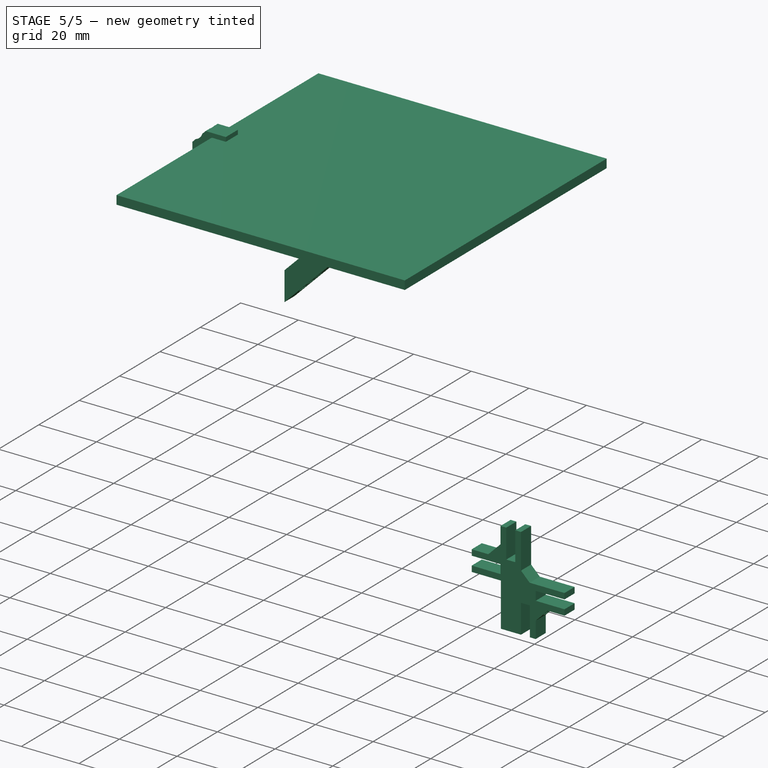
[diagram: stage 5 of 5 — iso view after this stage's code; geometry added in this stage tinted green]
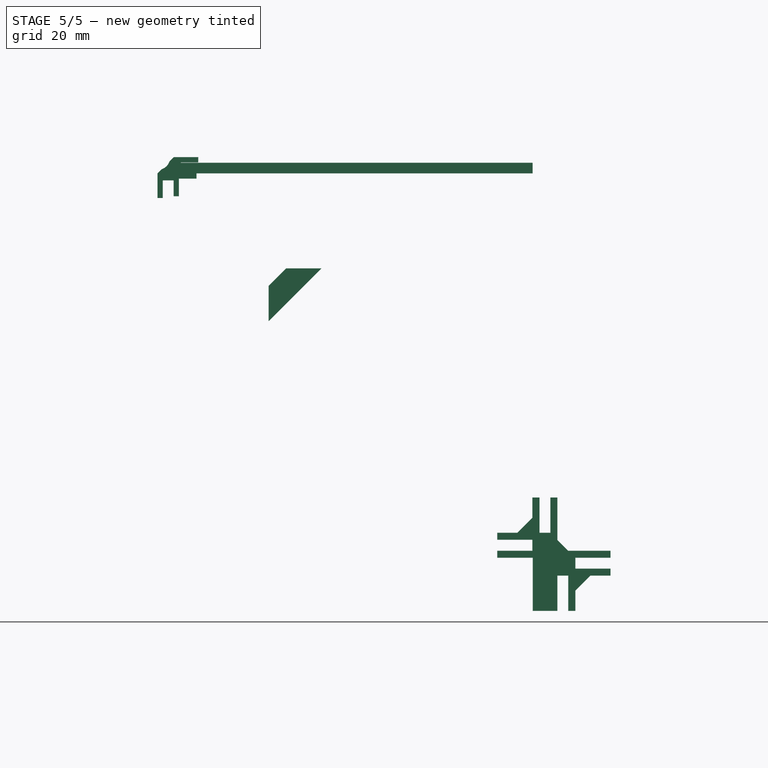
[diagram: stage 5 of 5 — front view after this stage's code; geometry added in this stage tinted green]
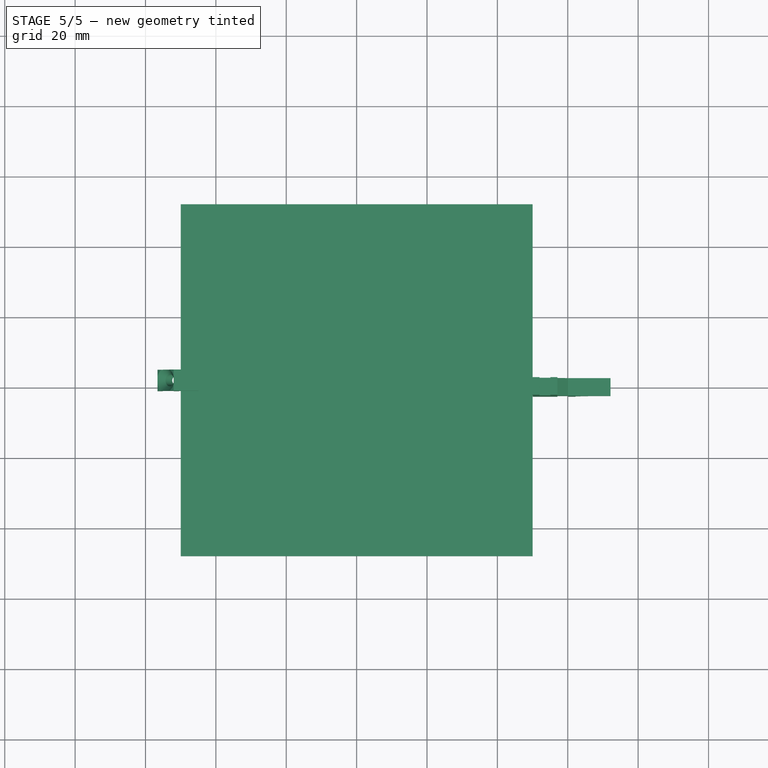
[diagram: stage 5 of 5 — top view after this stage's code; geometry added in this stage tinted green]
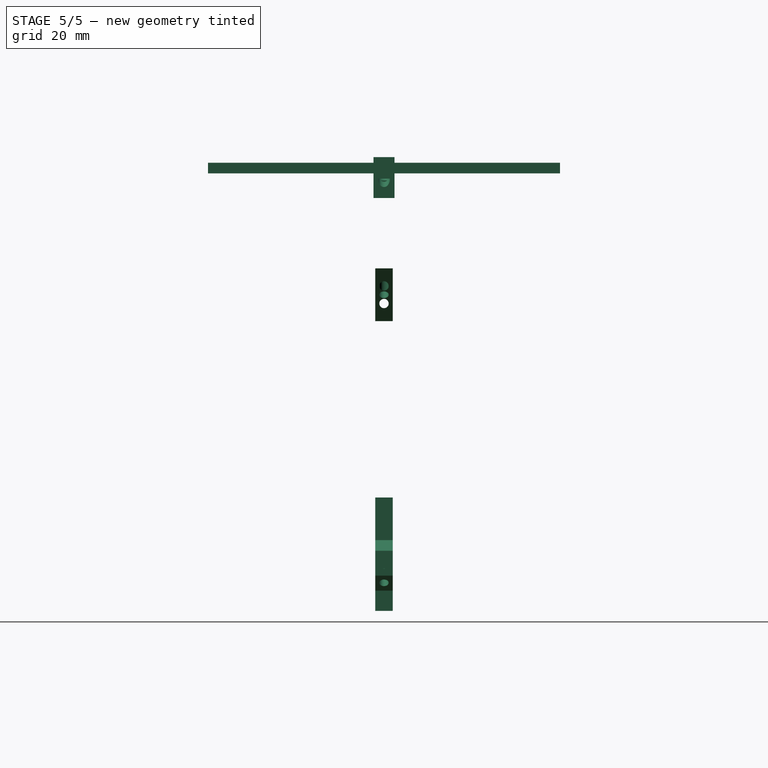
[diagram: stage 5 of 5 — right view after this stage's code; geometry added in this stage tinted green]
FEATURE [PartDesign::Body] Body  label="träger"
  Group = -> [Sketch,Pad,Sketch001,Hole,Sketch002,Hole001,Sketch003,Hole002]
  Origin = -> Origin
  Tip = -> Hole002
FEATURE [PartDesign::FeatureBase] Clone
  BaseFeature = -> Body
FEATURE [PartDesign::Body] Body001
  BaseFeature = -> Body
  Group = -> [Clone]
  Origin = -> Origin001
  Placement = pos=(0,0,0) rot=(0,0,1;1.5708rad)
  Tip = -> Clone
FEATURE [PartDesign::FeatureBase] Clone001
  BaseFeature = -> Body
FEATURE [PartDesign::Body] Body002
  BaseFeature = -> Body
  Group = -> [Clone001]
  Origin = -> Origin002
  Placement = pos=(0,0,0) rot=(0,0,1;3.14159rad)
  Tip = -> Clone001
FEATURE [PartDesign::FeatureBase] Clone002
  BaseFeature = -> Body
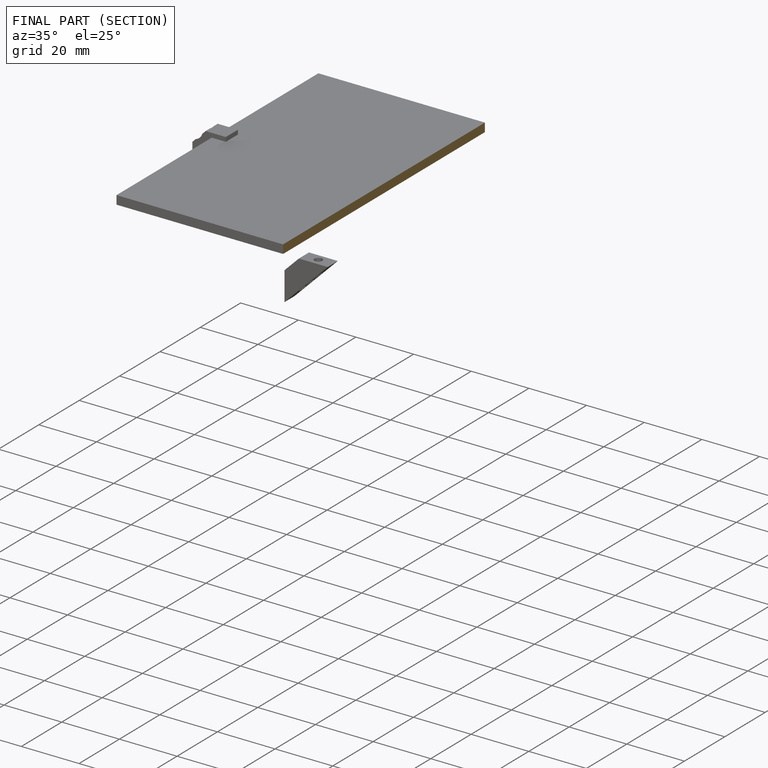
[diagram: finished part — half-section view (interior)]
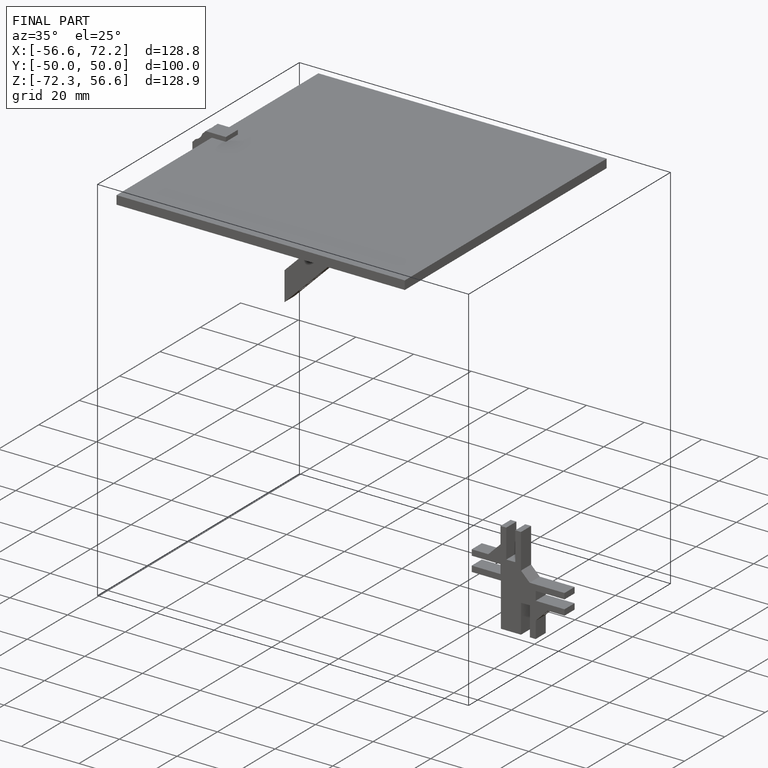
[diagram: finished part — iso view with bounding-box wireframe]
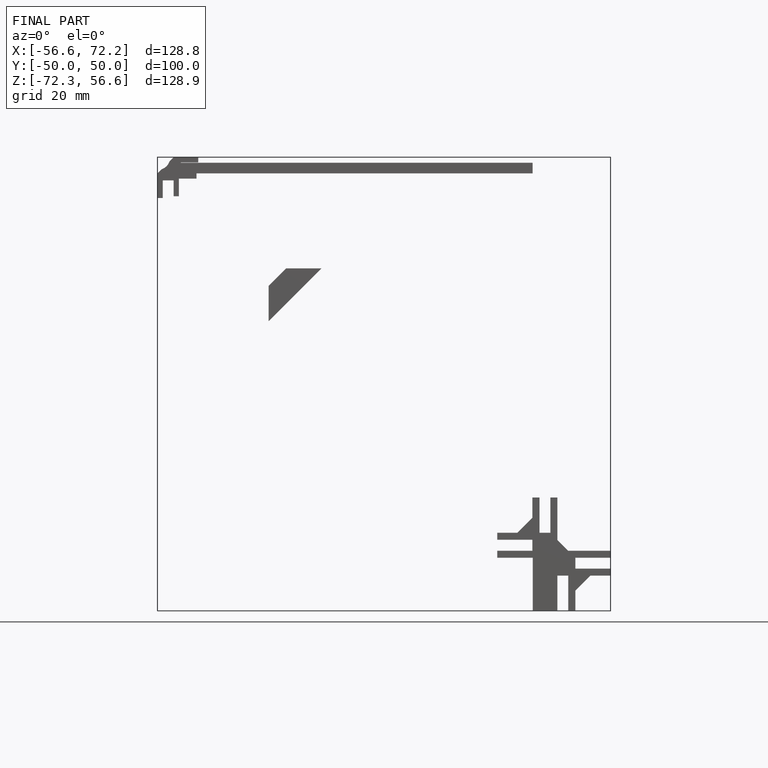
[diagram: finished part — front view with bounding-box wireframe]
